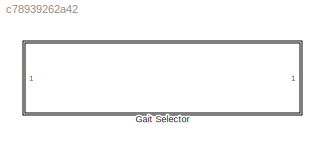
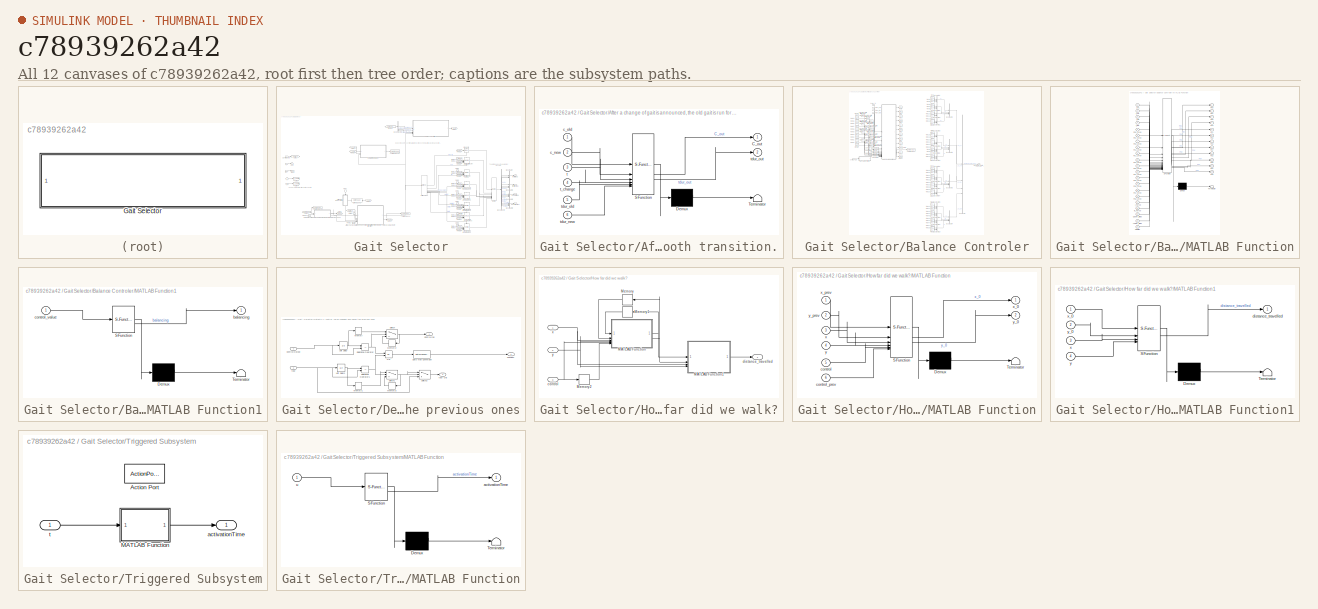
[diagram: thumbnail index - all 12 canvases of the model, root first then tree order]
MODEL slx_c78939262a42
KIND library
CONFIG AbsTol = auto
CONFIG EnableMultiTasking = off
CONFIG FixedStep = auto
CONFIG MaxStep = auto
CONFIG MinStep = auto
CONFIG RelTol = 1e-3
CONFIG SampleTimeConstraint = Unconstrained
CONFIG SolverName = VariableStepAuto
CONFIG StartTime = 0.0
CONFIG StopTime = 10.0
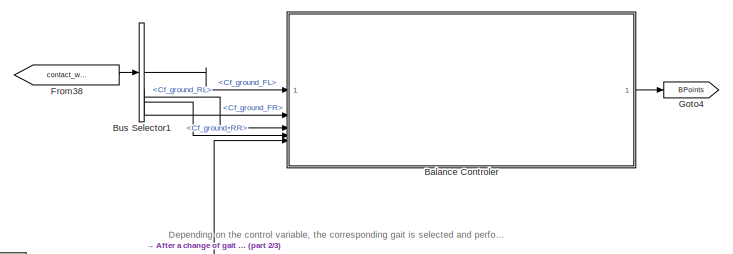
[diagram: Gait Selector - part 1/3, top center region]
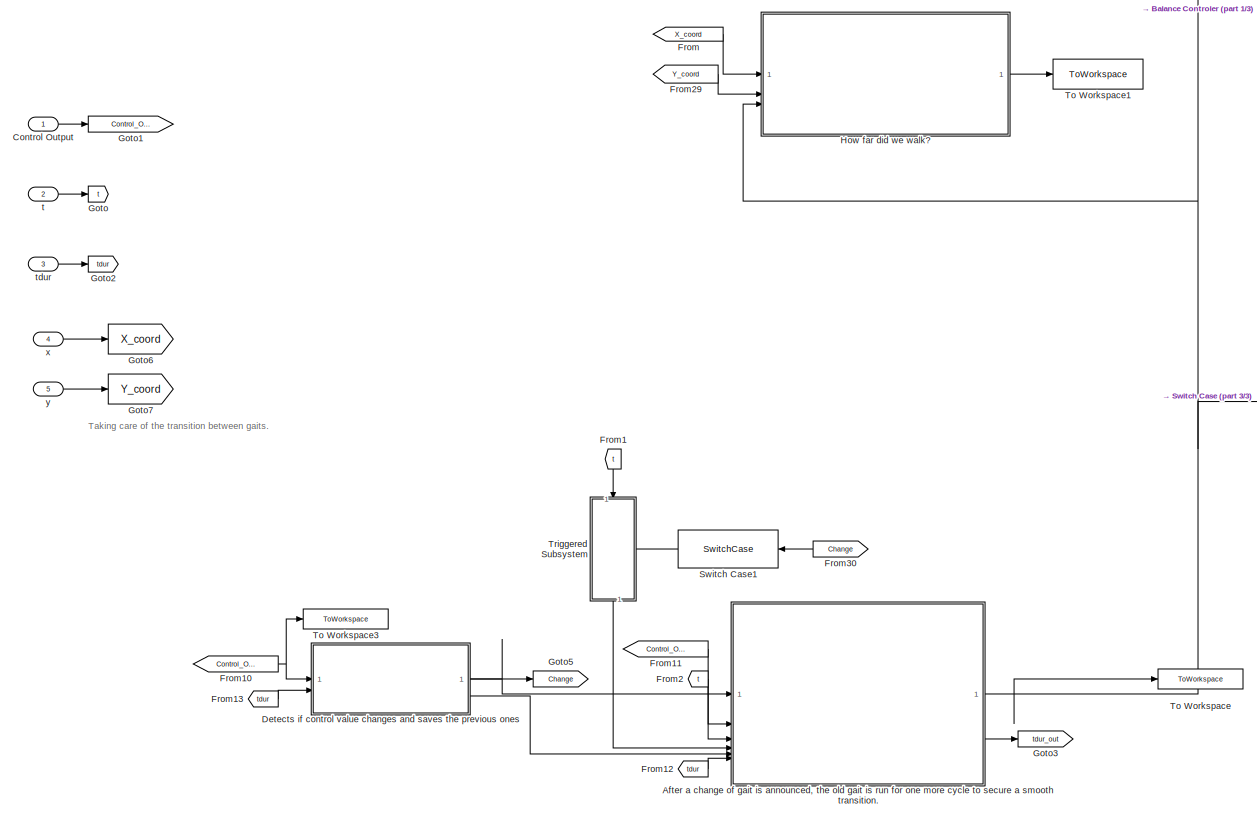
[diagram: Gait Selector - part 2/3, middle left region]
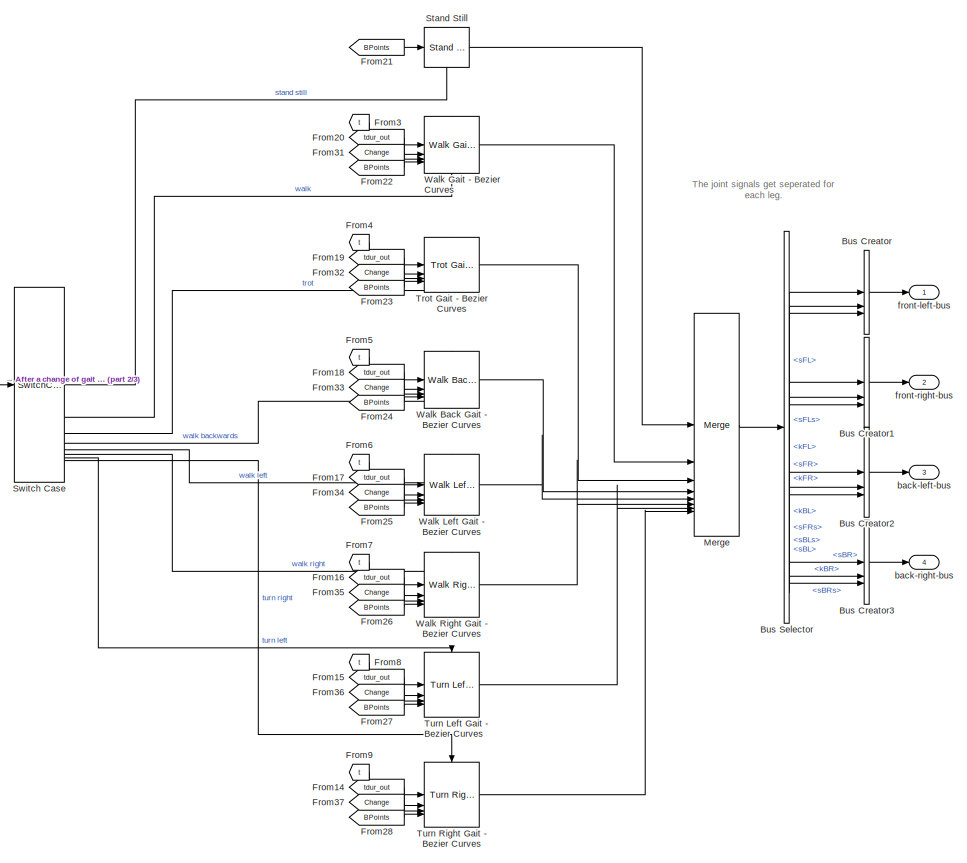
[diagram: Gait Selector - part 3/3, right side, full height]
BLOCK [SubSystem] Gait Selector
BLOCK [SubSystem] Gait Selector/After a change of gait is announced, the old gait is run for one more cycle to secure a smooth transition.
  ErrorFcn = Stateflow.Translate.translate
  PermitHierarchicalResolution = ExplicitOnly
  SFBlockType = MATLAB Function
  TreatAsAtomicUnit = on
BLOCK [Demux] Gait Selector/After a change of gait is announced, the old gait is run for one more cycle to secure a smooth transition./ Demux 
  Outputs = 1
BLOCK [S-Function] Gait Selector/After a change of gait is announced, the old gait is run for one more cycle to secure a smooth transition./ SFunction 
  EnableBusSupport = off
  FunctionName = sf_sfun
  PortCounts = [6 3]
  SFcnIsStateOwnerBlock = off
  SFunctionDeploymentMode = off
  Tag = Stateflow S-Function 105
BLOCK [Terminator] Gait Selector/After a change of gait is announced, the old gait is run for one more cycle to secure a smooth transition./ Terminator 
BLOCK [Outport] Gait Selector/After a change of gait is announced, the old gait is run for one more cycle to secure a smooth transition./C_out
BLOCK [Inport] Gait Selector/After a change of gait is announced, the old gait is run for one more cycle to secure a smooth transition./c_new
  Port = 2
BLOCK [Inport] Gait Selector/After a change of gait is announced, the old gait is run for one more cycle to secure a smooth transition./c_old
BLOCK [Inport] Gait Selector/After a change of gait is announced, the old gait is run for one more cycle to secure a smooth transition./t
  Port = 3
BLOCK [Inport] Gait Selector/After a change of gait is announced, the old gait is run for one more cycle to secure a smooth transition./t_change
  Port = 4
BLOCK [Inport] Gait Selector/After a change of gait is announced, the old gait is run for one more cycle to secure a smooth transition./tdur_new
  Port = 6
BLOCK [Inport] Gait Selector/After a change of gait is announced, the old gait is run for one more cycle to secure a smooth transition./tdur_old
  Port = 5
BLOCK [Outport] Gait Selector/After a change of gait is announced, the old gait is run for one more cycle to secure a smooth transition./tdur_out
  Port = 2
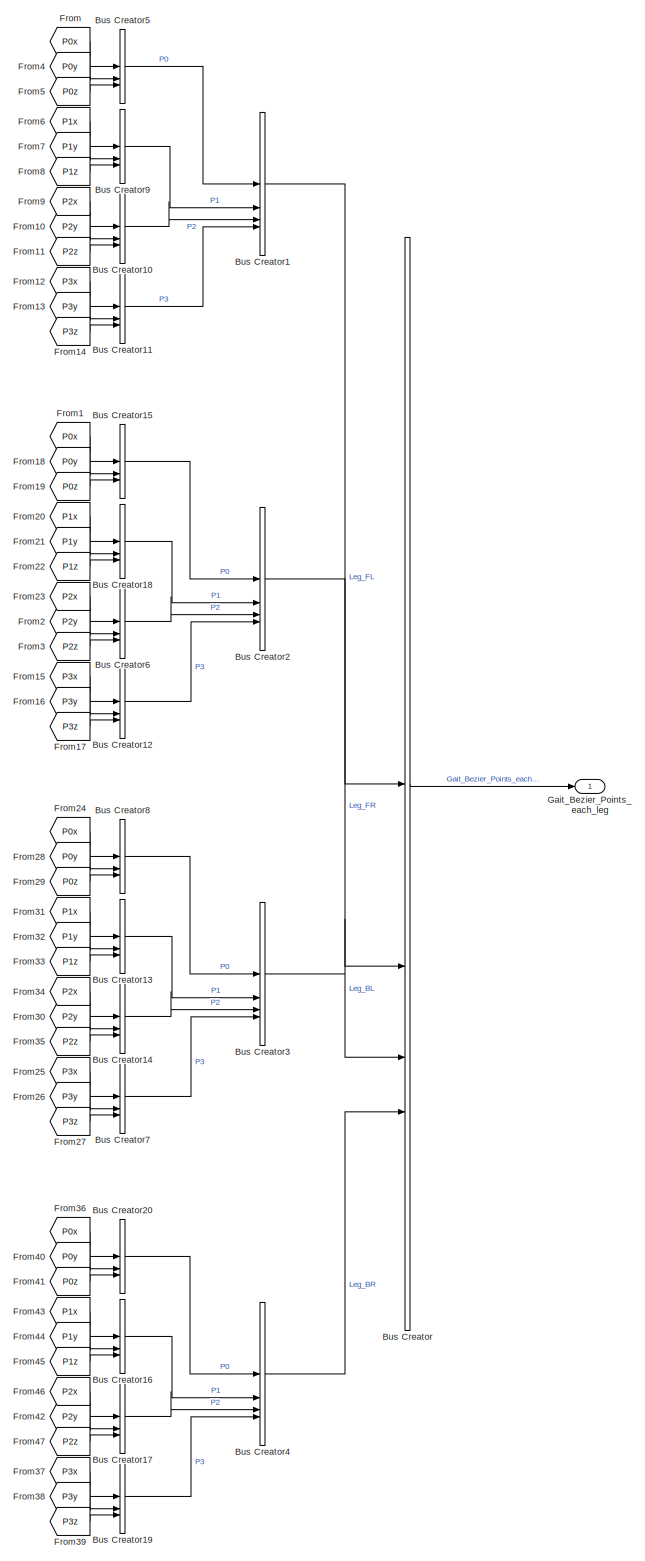
[diagram: Gait Selector/Balance Controler - part 1/2, right side, full height]
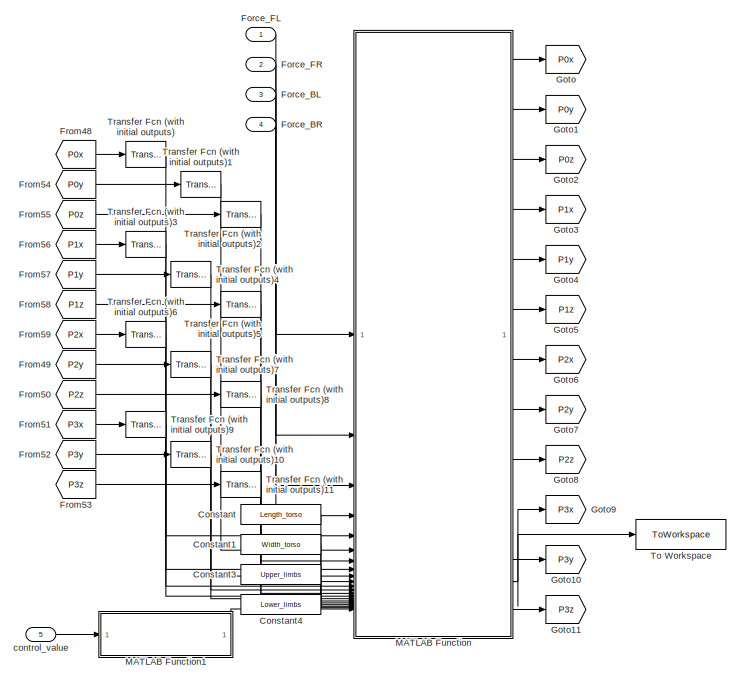
[diagram: Gait Selector/Balance Controler - part 2/2, top left region]
BLOCK [SubSystem] Gait Selector/Balance Controler
BLOCK [BusCreator] Gait Selector/Balance Controler/Bus Creator
  DisplayOption = bar
  InheritFromInputs = on
  Inputs = 4
BLOCK [BusCreator] Gait Selector/Balance Controler/Bus Creator1
  DisplayOption = bar
  InheritFromInputs = on
  Inputs = 4
BLOCK [BusCreator] Gait Selector/Balance Controler/Bus Creator10
  DisplayOption = bar
  InheritFromInputs = on
  Inputs = 3
BLOCK [BusCreator] Gait Selector/Balance Controler/Bus Creator11
  DisplayOption = bar
  InheritFromInputs = on
  Inputs = 3
BLOCK [BusCreator] Gait Selector/Balance Controler/Bus Creator12
  DisplayOption = bar
  InheritFromInputs = on
  Inputs = 3
BLOCK [BusCreator] Gait Selector/Balance Controler/Bus Creator13
  DisplayOption = bar
  InheritFromInputs = on
  Inputs = 3
BLOCK [BusCreator] Gait Selector/Balance Controler/Bus Creator14
  DisplayOption = bar
  InheritFromInputs = on
  Inputs = 3
BLOCK [BusCreator] Gait Selector/Balance Controler/Bus Creator15
  DisplayOption = bar
  InheritFromInputs = on
  Inputs = 3
BLOCK [BusCreator] Gait Selector/Balance Controler/Bus Creator16
  DisplayOption = bar
  InheritFromInputs = on
  Inputs = 3
BLOCK [BusCreator] Gait Selector/Balance Controler/Bus Creator17
  DisplayOption = bar
  InheritFromInputs = on
  Inputs = 3
BLOCK [BusCreator] Gait Selector/Balance Controler/Bus Creator18
  DisplayOption = bar
  InheritFromInputs = on
  Inputs = 3
BLOCK [BusCreator] Gait Selector/Balance Controler/Bus Creator19
  DisplayOption = bar
  InheritFromInputs = on
  Inputs = 3
BLOCK [BusCreator] Gait Selector/Balance Controler/Bus Creator2
  DisplayOption = bar
  InheritFromInputs = on
  Inputs = 4
BLOCK [BusCreator] Gait Selector/Balance Controler/Bus Creator20
  DisplayOption = bar
  InheritFromInputs = on
  Inputs = 3
BLOCK [BusCreator] Gait Selector/Balance Controler/Bus Creator3
  DisplayOption = bar
  InheritFromInputs = on
  Inputs = 4
BLOCK [BusCreator] Gait Selector/Balance Controler/Bus Creator4
  DisplayOption = bar
  InheritFromInputs = on
  Inputs = 4
BLOCK [BusCreator] Gait Selector/Balance Controler/Bus Creator5
  DisplayOption = bar
  InheritFromInputs = on
  Inputs = 3
BLOCK [BusCreator] Gait Selector/Balance Controler/Bus Creator6
  DisplayOption = bar
  InheritFromInputs = on
  Inputs = 3
BLOCK [BusCreator] Gait Selector/Balance Controler/Bus Creator7
  DisplayOption = bar
  InheritFromInputs = on
  Inputs = 3
BLOCK [BusCreator] Gait Selector/Balance Controler/Bus Creator8
  DisplayOption = bar
  InheritFromInputs = on
  Inputs = 3
BLOCK [BusCreator] Gait Selector/Balance Controler/Bus Creator9
  DisplayOption = bar
  InheritFromInputs = on
  Inputs = 3
BLOCK [Constant] Gait Selector/Balance Controler/Constant
  Value = Length_torso
BLOCK [Constant] Gait Selector/Balance Controler/Constant1
  Value = Width_torso
BLOCK [Constant] Gait Selector/Balance Controler/Constant3
  Value = Upper_limbs
BLOCK [Constant] Gait Selector/Balance Controler/Constant4
  Value = Lower_limbs
BLOCK [Inport] Gait Selector/Balance Controler/Force_BL
  Port = 3
BLOCK [Inport] Gait Selector/Balance Controler/Force_BR
  Port = 4
BLOCK [Inport] Gait Selector/Balance Controler/Force_FL
BLOCK [Inport] Gait Selector/Balance Controler/Force_FR
  Port = 2
BLOCK [From] Gait Selector/Balance Controler/From
  GotoTag = P0x
BLOCK [From] Gait Selector/Balance Controler/From1
  GotoTag = P0x
BLOCK [From] Gait Selector/Balance Controler/From10
  GotoTag = P2y
BLOCK [From] Gait Selector/Balance Controler/From11
  GotoTag = P2z
BLOCK [From] Gait Selector/Balance Controler/From12
  GotoTag = P3x
BLOCK [From] Gait Selector/Balance Controler/From13
  GotoTag = P3y
BLOCK [From] Gait Selector/Balance Controler/From14
  GotoTag = P3z
BLOCK [From] Gait Selector/Balance Controler/From15
  GotoTag = P3x
BLOCK [From] Gait Selector/Balance Controler/From16
  GotoTag = P3y
BLOCK [From] Gait Selector/Balance Controler/From17
  GotoTag = P3z
BLOCK [From] Gait Selector/Balance Controler/From18
  GotoTag = P0y
BLOCK [From] Gait Selector/Balance Controler/From19
  GotoTag = P0z
BLOCK [From] Gait Selector/Balance Controler/From2
  GotoTag = P2y
BLOCK [From] Gait Selector/Balance Controler/From20
  GotoTag = P1x
BLOCK [From] Gait Selector/Balance Controler/From21
  GotoTag = P1y
BLOCK [From] Gait Selector/Balance Controler/From22
  GotoTag = P1z
BLOCK [From] Gait Selector/Balance Controler/From23
  GotoTag = P2x
BLOCK [From] Gait Selector/Balance Controler/From24
  GotoTag = P0x
BLOCK [From] Gait Selector/Balance Controler/From25
  GotoTag = P3x
BLOCK [From] Gait Selector/Balance Controler/From26
  GotoTag = P3y
BLOCK [From] Gait Selector/Balance Controler/From27
  GotoTag = P3z
BLOCK [From] Gait Selector/Balance Controler/From28
  GotoTag = P0y
BLOCK [From] Gait Selector/Balance Controler/From29
  GotoTag = P0z
BLOCK [From] Gait Selector/Balance Controler/From3
  GotoTag = P2z
BLOCK [From] Gait Selector/Balance Controler/From30
  GotoTag = P2y
BLOCK [From] Gait Selector/Balance Controler/From31
  GotoTag = P1x
BLOCK [From] Gait Selector/Balance Controler/From32
  GotoTag = P1y
BLOCK [From] Gait Selector/Balance Controler/From33
  GotoTag = P1z
BLOCK [From] Gait Selector/Balance Controler/From34
  GotoTag = P2x
BLOCK [From] Gait Selector/Balance Controler/From35
  GotoTag = P2z
BLOCK [From] Gait Selector/Balance Controler/From36
  GotoTag = P0x
BLOCK [From] Gait Selector/Balance Controler/From37
  GotoTag = P3x
BLOCK [From] Gait Selector/Balance Controler/From38
  GotoTag = P3y
BLOCK [From] Gait Selector/Balance Controler/From39
  GotoTag = P3z
BLOCK [From] Gait Selector/Balance Controler/From4
  GotoTag = P0y
BLOCK [From] Gait Selector/Balance Controler/From40
  GotoTag = P0y
BLOCK [From] Gait Selector/Balance Controler/From41
  GotoTag = P0z
BLOCK [From] Gait Selector/Balance Controler/From42
  GotoTag = P2y
BLOCK [From] Gait Selector/Balance Controler/From43
  GotoTag = P1x
BLOCK [From] Gait Selector/Balance Controler/From44
  GotoTag = P1y
BLOCK [From] Gait Selector/Balance Controler/From45
  GotoTag = P1z
BLOCK [From] Gait Selector/Balance Controler/From46
  GotoTag = P2x
BLOCK [From] Gait Selector/Balance Controler/From47
  GotoTag = P2z
BLOCK [From] Gait Selector/Balance Controler/From48
  GotoTag = P0x
BLOCK [From] Gait Selector/Balance Controler/From49
  GotoTag = P2y
BLOCK [From] Gait Selector/Balance Controler/From5
  GotoTag = P0z
BLOCK [From] Gait Selector/Balance Controler/From50
  GotoTag = P2z
BLOCK [From] Gait Selector/Balance Controler/From51
  GotoTag = P3x
BLOCK [From] Gait Selector/Balance Controler/From52
  GotoTag = P3y
BLOCK [From] Gait Selector/Balance Controler/From53
  GotoTag = P3z
BLOCK [From] Gait Selector/Balance Controler/From54
  GotoTag = P0y
BLOCK [From] Gait Selector/Balance Controler/From55
  GotoTag = P0z
BLOCK [From] Gait Selector/Balance Controler/From56
  GotoTag = P1x
BLOCK [From] Gait Selector/Balance Controler/From57
  GotoTag = P1y
BLOCK [From] Gait Selector/Balance Controler/From58
  GotoTag = P1z
BLOCK [From] Gait Selector/Balance Controler/From59
  GotoTag = P2x
BLOCK [From] Gait Selector/Balance Controler/From6
  GotoTag = P1x
BLOCK [From] Gait Selector/Balance Controler/From7
  GotoTag = P1y
BLOCK [From] Gait Selector/Balance Controler/From8
  GotoTag = P1z
BLOCK [From] Gait Selector/Balance Controler/From9
  GotoTag = P2x
BLOCK [Outport] Gait Selector/Balance Controler/Gait_Bezier_Points_each_leg
BLOCK [Goto] Gait Selector/Balance Controler/Goto
  GotoTag = P0x
BLOCK [Goto] Gait Selector/Balance Controler/Goto1
  GotoTag = P0y
BLOCK [Goto] Gait Selector/Balance Controler/Goto10
  GotoTag = P3y
BLOCK [Goto] Gait Selector/Balance Controler/Goto11
  GotoTag = P3z
BLOCK [Goto] Gait Selector/Balance Controler/Goto2
  GotoTag = P0z
BLOCK [Goto] Gait Selector/Balance Controler/Goto3
  GotoTag = P1x
BLOCK [Goto] Gait Selector/Balance Controler/Goto4
  GotoTag = P1y
BLOCK [Goto] Gait Selector/Balance Controler/Goto5
  GotoTag = P1z
BLOCK [Goto] Gait Selector/Balance Controler/Goto6
  GotoTag = P2x
BLOCK [Goto] Gait Selector/Balance Controler/Goto7
  GotoTag = P2y
BLOCK [Goto] Gait Selector/Balance Controler/Goto8
  GotoTag = P2z
BLOCK [Goto] Gait Selector/Balance Controler/Goto9
  GotoTag = P3x
BLOCK [SubSystem] Gait Selector/Balance Controler/MATLAB Function
  ErrorFcn = Stateflow.Translate.translate
  PermitHierarchicalResolution = ExplicitOnly
  SFBlockType = MATLAB Function
  TreatAsAtomicUnit = on
BLOCK [Demux] Gait Selector/Balance Controler/MATLAB Function/ Demux 
  Outputs = 1
BLOCK [S-Function] Gait Selector/Balance Controler/MATLAB Function/ SFunction 
  EnableBusSupport = off
  FunctionName = sf_sfun
  PortCounts = [21 13]
  SFcnIsStateOwnerBlock = off
  SFunctionDeploymentMode = off
  Tag = Stateflow S-Function 2
BLOCK [Terminator] Gait Selector/Balance Controler/MATLAB Function/ Terminator 
BLOCK [Inport] Gait Selector/Balance Controler/MATLAB Function/Lower_limbs
  Port = 20
BLOCK [Outport] Gait Selector/Balance Controler/MATLAB Function/P0x
BLOCK [Inport] Gait Selector/Balance Controler/MATLAB Function/P0x_prev
  Port = 5
BLOCK [Outport] Gait Selector/Balance Controler/MATLAB Function/P0y
  Port = 2
BLOCK [Inport] Gait Selector/Balance Controler/MATLAB Function/P0y_prev
  Port = 6
BLOCK [Outport] Gait Selector/Balance Controler/MATLAB Function/P0z
  Port = 3
BLOCK [Inport] Gait Selector/Balance Controler/MATLAB Function/P0z_prev
  Port = 7
BLOCK [Outport] Gait Selector/Balance Controler/MATLAB Function/P1x
  Port = 4
BLOCK [Inport] Gait Selector/Balance Controler/MATLAB Function/P1x_prev
  Port = 8
BLOCK [Outport] Gait Selector/Balance Controler/MATLAB Function/P1y
  Port = 5
BLOCK [Inport] Gait Selector/Balance Controler/MATLAB Function/P1y_prev
  Port = 9
BLOCK [Outport] Gait Selector/Balance Controler/MATLAB Function/P1z
  Port = 6
BLOCK [Inport] Gait Selector/Balance Controler/MATLAB Function/P1z_prev
  Port = 10
BLOCK [Outport] Gait Selector/Balance Controler/MATLAB Function/P2x
  Port = 7
BLOCK [Inport] Gait Selector/Balance Controler/MATLAB Function/P2x_prev
  Port = 11
BLOCK [Outport] Gait Selector/Balance Controler/MATLAB Function/P2y
  Port = 8
BLOCK [Inport] Gait Selector/Balance Controler/MATLAB Function/P2y_prev
  Port = 12
BLOCK [Outport] Gait Selector/Balance Controler/MATLAB Function/P2z
  Port = 9
BLOCK [Inport] Gait Selector/Balance Controler/MATLAB Function/P2z_prev
  Port = 13
BLOCK [Outport] Gait Selector/Balance Controler/MATLAB Function/P3x
  Port = 10
BLOCK [Inport] Gait Selector/Balance Controler/MATLAB Function/P3x_prev
  Port = 14
BLOCK [Outport] Gait Selector/Balance Controler/MATLAB Function/P3y
  Port = 11
BLOCK [Inport] Gait Selector/Balance Controler/MATLAB Function/P3y_prev
  Port = 15
BLOCK [Outport] Gait Selector/Balance Controler/MATLAB Function/P3z
  Port = 12
BLOCK [Inport] Gait Selector/Balance Controler/MATLAB Function/P3z_prev
  Port = 16
BLOCK [Inport] Gait Selector/Balance Controler/MATLAB Function/Upper_limbs
  Port = 19
BLOCK [Inport] Gait Selector/Balance Controler/MATLAB Function/f_BL
  Port = 3
BLOCK [Inport] Gait Selector/Balance Controler/MATLAB Function/f_BR
  Port = 4
BLOCK [Inport] Gait Selector/Balance Controler/MATLAB Function/f_FL
BLOCK [Inport] Gait Selector/Balance Controler/MATLAB Function/f_FR
  Port = 2
BLOCK [Inport] Gait Selector/Balance Controler/MATLAB Function/l_Torso
  Port = 17
BLOCK [Inport] Gait Selector/Balance Controler/MATLAB Function/stabilize
  Port = 21
BLOCK [Inport] Gait Selector/Balance Controler/MATLAB Function/w_Torso
  Port = 18
BLOCK [SubSystem] Gait Selector/Balance Controler/MATLAB Function1
  ErrorFcn = Stateflow.Translate.translate
  PermitHierarchicalResolution = ExplicitOnly
  SFBlockType = MATLAB Function
  TreatAsAtomicUnit = on
BLOCK [Demux] Gait Selector/Balance Controler/MATLAB Function1/ Demux 
  Outputs = 1
BLOCK [S-Function] Gait Selector/Balance Controler/MATLAB Function1/ SFunction 
  EnableBusSupport = off
  FunctionName = sf_sfun
  PortCounts = [1 2]
  SFcnIsStateOwnerBlock = off
  SFunctionDeploymentMode = off
  Tag = Stateflow S-Function 1
BLOCK [Terminator] Gait Selector/Balance Controler/MATLAB Function1/ Terminator 
BLOCK [Outport] Gait Selector/Balance Controler/MATLAB Function1/balancing
BLOCK [Inport] Gait Selector/Balance Controler/MATLAB Function1/control_value
BLOCK [ToWorkspace] Gait Selector/Balance Controler/To Workspace
  Commented = on
  FixptAsFi = on
  MaxDataPoints = inf
  SampleTime = -1
  SaveFormat = Structure With Time
  VariableName = temp
BLOCK [Reference] Gait Selector/Balance Controler/Transfer Fcn (with initial outputs)  REF=simulink_extras/Additional
Linear/Transfer Fcn
(with initial outputs)
  SourceBlock = simulink_extras/Additional\nLinear/Transfer Fcn\n(with initial outputs)
  SourceType = Transfer Function with Initial Outputs
BLOCK [Reference] Gait Selector/Balance Controler/Transfer Fcn (with initial outputs)1  REF=simulink_extras/Additional
Linear/Transfer Fcn
(with initial outputs)
  SourceBlock = simulink_extras/Additional\nLinear/Transfer Fcn\n(with initial outputs)
  SourceType = Transfer Function with Initial Outputs
BLOCK [Reference] Gait Selector/Balance Controler/Transfer Fcn (with initial outputs)10  REF=simulink_extras/Additional
Linear/Transfer Fcn
(with initial outputs)
  SourceBlock = simulink_extras/Additional\nLinear/Transfer Fcn\n(with initial outputs)
  SourceType = Transfer Function with Initial Outputs
BLOCK [Reference] Gait Selector/Balance Controler/Transfer Fcn (with initial outputs)11  REF=simulink_extras/Additional
Linear/Transfer Fcn
(with initial outputs)
  SourceBlock = simulink_extras/Additional\nLinear/Transfer Fcn\n(with initial outputs)
  SourceType = Transfer Function with Initial Outputs
BLOCK [Reference] Gait Selector/Balance Controler/Transfer Fcn (with initial outputs)2  REF=simulink_extras/Additional
Linear/Transfer Fcn
(with initial outputs)
  SourceBlock = simulink_extras/Additional\nLinear/Transfer Fcn\n(with initial outputs)
  SourceType = Transfer Function with Initial Outputs
BLOCK [Reference] Gait Selector/Balance Controler/Transfer Fcn (with initial outputs)3  REF=simulink_extras/Additional
Linear/Transfer Fcn
(with initial outputs)
  SourceBlock = simulink_extras/Additional\nLinear/Transfer Fcn\n(with initial outputs)
  SourceType = Transfer Function with Initial Outputs
BLOCK [Reference] Gait Selector/Balance Controler/Transfer Fcn (with initial outputs)4  REF=simulink_extras/Additional
Linear/Transfer Fcn
(with initial outputs)
  SourceBlock = simulink_extras/Additional\nLinear/Transfer Fcn\n(with initial outputs)
  SourceType = Transfer Function with Initial Outputs
BLOCK [Reference] Gait Selector/Balance Controler/Transfer Fcn (with initial outputs)5  REF=simulink_extras/Additional
Linear/Transfer Fcn
(with initial outputs)
  SourceBlock = simulink_extras/Additional\nLinear/Transfer Fcn\n(with initial outputs)
  SourceType = Transfer Function with Initial Outputs
BLOCK [Reference] Gait Selector/Balance Controler/Transfer Fcn (with initial outputs)6  REF=simulink_extras/Additional
Linear/Transfer Fcn
(with initial outputs)
  SourceBlock = simulink_extras/Additional\nLinear/Transfer Fcn\n(with initial outputs)
  SourceType = Transfer Function with Initial Outputs
BLOCK [Reference] Gait Selector/Balance Controler/Transfer Fcn (with initial outputs)7  REF=simulink_extras/Additional
Linear/Transfer Fcn
(with initial outputs)
  SourceBlock = simulink_extras/Additional\nLinear/Transfer Fcn\n(with initial outputs)
  SourceType = Transfer Function with Initial Outputs
BLOCK [Reference] Gait Selector/Balance Controler/Transfer Fcn (with initial outputs)8  REF=simulink_extras/Additional
Linear/Transfer Fcn
(with initial outputs)
  SourceBlock = simulink_extras/Additional\nLinear/Transfer Fcn\n(with initial outputs)
  SourceType = Transfer Function with Initial Outputs
BLOCK [Reference] Gait Selector/Balance Controler/Transfer Fcn (with initial outputs)9  REF=simulink_extras/Additional
Linear/Transfer Fcn
(with initial outputs)
  SourceBlock = simulink_extras/Additional\nLinear/Transfer Fcn\n(with initial outputs)
  SourceType = Transfer Function with Initial Outputs
BLOCK [Inport] Gait Selector/Balance Controler/control_value
  Port = 5
BLOCK [BusCreator] Gait Selector/Bus Creator
  DisplayOption = bar
  InheritFromInputs = on
  Inputs = 3
BLOCK [BusCreator] Gait Selector/Bus Creator1
  DisplayOption = bar
  InheritFromInputs = on
  Inputs = 3
BLOCK [BusCreator] Gait Selector/Bus Creator2
  DisplayOption = bar
  InheritFromInputs = on
  Inputs = 3
BLOCK [BusCreator] Gait Selector/Bus Creator3
  DisplayOption = bar
  InheritFromInputs = on
  Inputs = 3
BLOCK [BusSelector] Gait Selector/Bus Selector
  OutputSignals = sFL,kFL,sFLs,sFR,kFR,sFRs,sBL,kBL,sBLs,sBR,kBR,sBRs
BLOCK [BusSelector] Gait Selector/Bus Selector1
  OutputSignals = Cf_ground_FL,Cf_ground_FR,Cf_ground_RL,Cf_ground_RR
BLOCK [Inport] Gait Selector/Control Output
BLOCK [SubSystem] Gait Selector/Detects if control value changes and saves the previous ones
BLOCK [Outport] Gait Selector/Detects if control value changes and saves the previous ones/Change?
  Port = 2
BLOCK [Outport] Gait Selector/Detects if control value changes and saves the previous ones/Control Old
BLOCK [Inport] Gait Selector/Detects if control value changes and saves the previous ones/Control Output
BLOCK [DataTypeConversion] Gait Selector/Detects if control value changes and saves the previous ones/Data Type Conversion
  OutDataTypeStr = double
  RndMeth = Floor
  SaturateOnIntegerOverflow = off
BLOCK [Memory] Gait Selector/Detects if control value changes and saves the previous ones/Memory
BLOCK [Memory] Gait Selector/Detects if control value changes and saves the previous ones/Memory1
BLOCK [Memory] Gait Selector/Detects if control value changes and saves the previous ones/Memory2
  NameLocation = top
BLOCK [Memory] Gait Selector/Detects if control value changes and saves the previous ones/Memory3
  NameLocation = top
BLOCK [Logic] Gait Selector/Detects if control value changes and saves the previous ones/OR
  AllPortsSameDT = off
  IconShape = distinctive
  Operator = OR
  OutDataTypeStr = boolean
BLOCK [RelationalOperator] Gait Selector/Detects if control value changes and saves the previous ones/Relational Operator
  InputSameDT = off
  Operator = ~=
  OutDataTypeStr = boolean
  RndMeth = Simplest
BLOCK [RelationalOperator] Gait Selector/Detects if control value changes and saves the previous ones/Relational Operator1
  InputSameDT = off
  Operator = ~=
  OutDataTypeStr = boolean
  RndMeth = Simplest
BLOCK [Switch] Gait Selector/Detects if control value changes and saves the previous ones/Switch
  Criteria = u2 > Threshold
  InputSameDT = off
  SaturateOnIntegerOverflow = off
BLOCK [Switch] Gait Selector/Detects if control value changes and saves the previous ones/Switch1
  Criteria = u2 > Threshold
  InputSameDT = off
  SaturateOnIntegerOverflow = off
BLOCK [Switch] Gait Selector/Detects if control value changes and saves the previous ones/Switch2
  Criteria = u2 ~= 0
  InputSameDT = off
  SaturateOnIntegerOverflow = off
BLOCK [UnitDelay] Gait Selector/Detects if control value changes and saves the previous ones/Unit Delay
  HasFrameUpgradeWarning = on
  SampleTime = -1
BLOCK [UnitDelay] Gait Selector/Detects if control value changes and saves the previous ones/Unit Delay1
  HasFrameUpgradeWarning = on
  SampleTime = -1
BLOCK [Inport] Gait Selector/Detects if control value changes and saves the previous ones/tdur
  Port = 2
BLOCK [Outport] Gait Selector/Detects if control value changes and saves the previous ones/tdur Old
  Port = 3
BLOCK [From] Gait Selector/From
  GotoTag = X_coord
BLOCK [From] Gait Selector/From1
  GotoTag = t
  NameLocation = left
BLOCK [From] Gait Selector/From10
  GotoTag = Control_Output
BLOCK [From] Gait Selector/From11
  GotoTag = Control_Output
BLOCK [From] Gait Selector/From12
  GotoTag = tdur
BLOCK [From] Gait Selector/From13
  GotoTag = tdur
BLOCK [From] Gait Selector/From14
  GotoTag = tdur_out
BLOCK [From] Gait Selector/From15
  GotoTag = tdur_out
BLOCK [From] Gait Selector/From16
  GotoTag = tdur_out
BLOCK [From] Gait Selector/From17
  GotoTag = tdur_out
BLOCK [From] Gait Selector/From18
  GotoTag = tdur_out
BLOCK [From] Gait Selector/From19
  GotoTag = tdur_out
BLOCK [From] Gait Selector/From2
  GotoTag = t
BLOCK [From] Gait Selector/From20
  GotoTag = tdur_out
BLOCK [From] Gait Selector/From21
  GotoTag = BPoints
BLOCK [From] Gait Selector/From22
  GotoTag = BPoints
BLOCK [From] Gait Selector/From23
  GotoTag = BPoints
BLOCK [From] Gait Selector/From24
  GotoTag = BPoints
BLOCK [From] Gait Selector/From25
  GotoTag = BPoints
BLOCK [From] Gait Selector/From26
  GotoTag = BPoints
BLOCK [From] Gait Selector/From27
  GotoTag = BPoints
BLOCK [From] Gait Selector/From28
  GotoTag = BPoints
BLOCK [From] Gait Selector/From29
  GotoTag = Y_coord
BLOCK [From] Gait Selector/From3
  GotoTag = t
BLOCK [From] Gait Selector/From30
  GotoTag = Change
BLOCK [From] Gait Selector/From31
  GotoTag = Change
BLOCK [From] Gait Selector/From32
  GotoTag = Change
BLOCK [From] Gait Selector/From33
  GotoTag = Change
BLOCK [From] Gait Selector/From34
  GotoTag = Change
BLOCK [From] Gait Selector/From35
  GotoTag = Change
BLOCK [From] Gait Selector/From36
  GotoTag = Change
BLOCK [From] Gait Selector/From37
  GotoTag = Change
BLOCK [From] Gait Selector/From38
  GotoTag = contact_with_grid
  TagVisibility = global
BLOCK [From] Gait Selector/From4
  GotoTag = t
BLOCK [From] Gait Selector/From5
  GotoTag = t
BLOCK [From] Gait Selector/From6
  GotoTag = t
BLOCK [From] Gait Selector/From7
  GotoTag = t
BLOCK [From] Gait Selector/From8
  GotoTag = t
BLOCK [From] Gait Selector/From9
  GotoTag = t
BLOCK [Goto] Gait Selector/Goto
  GotoTag = t
BLOCK [Goto] Gait Selector/Goto1
  GotoTag = Control_Output
BLOCK [Goto] Gait Selector/Goto2
  GotoTag = tdur
BLOCK [Goto] Gait Selector/Goto3
  GotoTag = tdur_out
BLOCK [Goto] Gait Selector/Goto4
  GotoTag = BPoints
BLOCK [Goto] Gait Selector/Goto5
  GotoTag = Change
BLOCK [Goto] Gait Selector/Goto6
  GotoTag = X_coord
BLOCK [Goto] Gait Selector/Goto7
  GotoTag = Y_coord
BLOCK [SubSystem] Gait Selector/How far did we walk?
BLOCK [SubSystem] Gait Selector/How far did we walk?/MATLAB Function
  ErrorFcn = Stateflow.Translate.translate
  PermitHierarchicalResolution = ExplicitOnly
  SFBlockType = MATLAB Function
  TreatAsAtomicUnit = on
BLOCK [Demux] Gait Selector/How far did we walk?/MATLAB Function/ Demux 
  Outputs = 1
BLOCK [S-Function] Gait Selector/How far did we walk?/MATLAB Function/ SFunction 
  EnableBusSupport = off
  FunctionName = sf_sfun
  PortCounts = [6 3]
  SFcnIsStateOwnerBlock = off
  SFunctionDeploymentMode = off
  Tag = Stateflow S-Function 3
BLOCK [Terminator] Gait Selector/How far did we walk?/MATLAB Function/ Terminator 
BLOCK [Inport] Gait Selector/How far did we walk?/MATLAB Function/control
  Port = 5
BLOCK [Inport] Gait Selector/How far did we walk?/MATLAB Function/control_prev
  Port = 6
BLOCK [Inport] Gait Selector/How far did we walk?/MATLAB Function/x
  Port = 3
BLOCK [Outport] Gait Selector/How far did we walk?/MATLAB Function/x_0
BLOCK [Inport] Gait Selector/How far did we walk?/MATLAB Function/x_prev
BLOCK [Inport] Gait Selector/How far did we walk?/MATLAB Function/y
  Port = 4
BLOCK [Outport] Gait Selector/How far did we walk?/MATLAB Function/y_0
  Port = 2
BLOCK [Inport] Gait Selector/How far did we walk?/MATLAB Function/y_prev
  Port = 2
BLOCK [SubSystem] Gait Selector/How far did we walk?/MATLAB Function1
  ErrorFcn = Stateflow.Translate.translate
  PermitHierarchicalResolution = ExplicitOnly
  SFBlockType = MATLAB Function
  TreatAsAtomicUnit = on
BLOCK [Demux] Gait Selector/How far did we walk?/MATLAB Function1/ Demux 
  Outputs = 1
BLOCK [S-Function] Gait Selector/How far did we walk?/MATLAB Function1/ SFunction 
  EnableBusSupport = off
  FunctionName = sf_sfun
  PortCounts = [4 2]
  SFcnIsStateOwnerBlock = off
  SFunctionDeploymentMode = off
  Tag = Stateflow S-Function 4
BLOCK [Terminator] Gait Selector/How far did we walk?/MATLAB Function1/ Terminator 
BLOCK [Outport] Gait Selector/How far did we walk?/MATLAB Function1/distance_travelled
BLOCK [Inport] Gait Selector/How far did we walk?/MATLAB Function1/x
  Port = 3
BLOCK [Inport] Gait Selector/How far did we walk?/MATLAB Function1/x_0
BLOCK [Inport] Gait Selector/How far did we walk?/MATLAB Function1/y
  Port = 4
BLOCK [Inport] Gait Selector/How far did we walk?/MATLAB Function1/y_0
  Port = 2
BLOCK [Memory] Gait Selector/How far did we walk?/Memory
  NameLocation = top
BLOCK [Memory] Gait Selector/How far did we walk?/Memory1
  NameLocation = top
BLOCK [Memory] Gait Selector/How far did we walk?/Memory2
BLOCK [Inport] Gait Selector/How far did we walk?/control
  Port = 3
BLOCK [Outport] Gait Selector/How far did we walk?/distance_travelled
BLOCK [Inport] Gait Selector/How far did we walk?/x
BLOCK [Inport] Gait Selector/How far did we walk?/y
  Port = 2
BLOCK [Merge] Gait Selector/Merge
  Inputs = 8
BLOCK [Reference] Gait Selector/Stand Still  REF=stand_still_Gait/Stand Still
  SourceBlock = stand_still_Gait/Stand Still
  SourceType = SubSystem
BLOCK [SwitchCase] Gait Selector/Switch Case
  CaseConditions = {0,1,2,3,4,5,6,7}
  ShowDefaultCase = off
BLOCK [SwitchCase] Gait Selector/Switch Case1
  NameLocation = top
  ShowDefaultCase = off
BLOCK [ToWorkspace] Gait Selector/To Workspace
  FixptAsFi = on
  MaxDataPoints = inf
  SampleTime = -1
  SaveFormat = Structure With Time
  VariableName = control_variable
BLOCK [ToWorkspace] Gait Selector/To Workspace1
  FixptAsFi = on
  MaxDataPoints = inf
  SampleTime = -1
  SaveFormat = Structure With Time
  VariableName = temp
BLOCK [ToWorkspace] Gait Selector/To Workspace3
  FixptAsFi = on
  MaxDataPoints = inf
  SampleTime = -1
  SaveFormat = Structure With Time
  VariableName = signal_from_control
BLOCK [SubSystem] Gait Selector/Triggered Subsystem
  NameLocation = left
  TreatAsAtomicUnit = on
BLOCK [ActionPort] Gait Selector/Triggered Subsystem/Action Port
  InitializeStates = reset
BLOCK [SubSystem] Gait Selector/Triggered Subsystem/MATLAB Function
  ErrorFcn = Stateflow.Translate.translate
  PermitHierarchicalResolution = ExplicitOnly
  SFBlockType = MATLAB Function
  TreatAsAtomicUnit = on
BLOCK [Demux] Gait Selector/Triggered Subsystem/MATLAB Function/ Demux 
  Outputs = 1
BLOCK [S-Function] Gait Selector/Triggered Subsystem/MATLAB Function/ SFunction 
  EnableBusSupport = off
  FunctionName = sf_sfun
  PortCounts = [1 2]
  SFcnIsStateOwnerBlock = off
  SFunctionDeploymentMode = off
  Tag = Stateflow S-Function 101
BLOCK [Terminator] Gait Selector/Triggered Subsystem/MATLAB Function/ Terminator 
BLOCK [Outport] Gait Selector/Triggered Subsystem/MATLAB Function/activationTime
BLOCK [Inport] Gait Selector/Triggered Subsystem/MATLAB Function/u
BLOCK [Outport] Gait Selector/Triggered Subsystem/activationTime
BLOCK [Inport] Gait Selector/Triggered Subsystem/t
BLOCK [Reference] Gait Selector/Trot Gait - Bezier Curves  REF=trot_Gait/Trot Gait - Bezier Curves
  SourceBlock = trot_Gait/Trot Gait - Bezier Curves
  SourceType = SubSystem
BLOCK [Reference] Gait Selector/Turn Left Gait - Bezier Curves  REF=turn_left_Gait/Turn Left Gait - Bezier Curves
  SourceBlock = turn_left_Gait/Turn Left Gait - Bezier Curves
  SourceType = SubSystem
BLOCK [Reference] Gait Selector/Turn Right Gait - Bezier Curves  REF=turn_right_Gait/Turn Right Gait - Bezier Curves
  SourceBlock = turn_right_Gait/Turn Right Gait - Bezier Curves
  SourceType = SubSystem
BLOCK [Reference] Gait Selector/Walk Back Gait - Bezier Curves  REF=walk_back_Gait/Walk Back Gait - Bezier Curves
  SourceBlock = walk_back_Gait/Walk Back Gait - Bezier Curves
  SourceType = SubSystem
BLOCK [Reference] Gait Selector/Walk Gait - Bezier Curves  REF=walk_Gait/Walk Gait - Bezier Curves
  SourceBlock = walk_Gait/Walk Gait - Bezier Curves
  SourceType = SubSystem
BLOCK [Reference] Gait Selector/Walk Left Gait - Bezier Curves  REF=walk_left_Gait/Walk Left Gait - Bezier Curves
  SourceBlock = walk_left_Gait/Walk Left Gait - Bezier Curves
  SourceType = SubSystem
BLOCK [Reference] Gait Selector/Walk Right Gait - Bezier Curves  REF=walk_right_Gait/Walk Right Gait - Bezier Curves
  SourceBlock = walk_right_Gait/Walk Right Gait - Bezier Curves
  SourceType = SubSystem
BLOCK [Outport] Gait Selector/back-left-bus
  Port = 3
BLOCK [Outport] Gait Selector/back-right-bus
  Port = 4
BLOCK [Outport] Gait Selector/front-left-bus
BLOCK [Outport] Gait Selector/front-right-bus
  Port = 2
BLOCK [Inport] Gait Selector/t
  Port = 2
BLOCK [Inport] Gait Selector/tdur
  Port = 3
BLOCK [Inport] Gait Selector/x
  Port = 4
BLOCK [Inport] Gait Selector/y
  Port = 5
ANNOTATION Gait Selector: Depending on the control variable, the corresponding gait is selected and performed.
ANNOTATION Gait Selector: Taking care of the transition between gaits.
ANNOTATION Gait Selector: The joint signals get seperated for each leg.
NET Gait Selector/After a change of gait is announced, the old gait is run for one more cycle to secure a smooth transition.:1 -> Gait Selector/Balance Controler:5, Gait Selector/How far did we walk?:3, Gait Selector/Switch Case:1, Gait Selector/To Workspace:1
LINE Gait Selector/After a change of gait is announced, the old gait is run for one more cycle to secure a smooth transition.:2 -> Gait Selector/Goto3:1
LINE Gait Selector/Balance Controler/Bus Creator10:1 -> Gait Selector/Balance Controler/Bus Creator1:3
LINE Gait Selector/Balance Controler/Bus Creator11:1 -> Gait Selector/Balance Controler/Bus Creator1:4
LINE Gait Selector/Balance Controler/Bus Creator12:1 -> Gait Selector/Balance Controler/Bus Creator2:4
LINE Gait Selector/Balance Controler/Bus Creator13:1 -> Gait Selector/Balance Controler/Bus Creator3:2
LINE Gait Selector/Balance Controler/Bus Creator14:1 -> Gait Selector/Balance Controler/Bus Creator3:3
LINE Gait Selector/Balance Controler/Bus Creator15:1 -> Gait Selector/Balance Controler/Bus Creator2:1
LINE Gait Selector/Balance Controler/Bus Creator16:1 -> Gait Selector/Balance Controler/Bus Creator4:2
LINE Gait Selector/Balance Controler/Bus Creator17:1 -> Gait Selector/Balance Controler/Bus Creator4:3
LINE Gait Selector/Balance Controler/Bus Creator18:1 -> Gait Selector/Balance Controler/Bus Creator2:2
LINE Gait Selector/Balance Controler/Bus Creator19:1 -> Gait Selector/Balance Controler/Bus Creator4:4
LINE Gait Selector/Balance Controler/Bus Creator1:1 -> Gait Selector/Balance Controler/Bus Creator:1
LINE Gait Selector/Balance Controler/Bus Creator20:1 -> Gait Selector/Balance Controler/Bus Creator4:1
LINE Gait Selector/Balance Controler/Bus Creator2:1 -> Gait Selector/Balance Controler/Bus Creator:2
LINE Gait Selector/Balance Controler/Bus Creator3:1 -> Gait Selector/Balance Controler/Bus Creator:3
LINE Gait Selector/Balance Controler/Bus Creator4:1 -> Gait Selector/Balance Controler/Bus Creator:4
LINE Gait Selector/Balance Controler/Bus Creator5:1 -> Gait Selector/Balance Controler/Bus Creator1:1
LINE Gait Selector/Balance Controler/Bus Creator6:1 -> Gait Selector/Balance Controler/Bus Creator2:3
LINE Gait Selector/Balance Controler/Bus Creator7:1 -> Gait Selector/Balance Controler/Bus Creator3:4
LINE Gait Selector/Balance Controler/Bus Creator8:1 -> Gait Selector/Balance Controler/Bus Creator3:1
LINE Gait Selector/Balance Controler/Bus Creator9:1 -> Gait Selector/Balance Controler/Bus Creator1:2
LINE Gait Selector/Balance Controler/Bus Creator:1 -> Gait Selector/Balance Controler/Gait_Bezier_Points_each_leg:1
LINE Gait Selector/Balance Controler/Constant1:1 -> Gait Selector/Balance Controler/MATLAB Function:18
LINE Gait Selector/Balance Controler/Constant3:1 -> Gait Selector/Balance Controler/MATLAB Function:19
LINE Gait Selector/Balance Controler/Constant4:1 -> Gait Selector/Balance Controler/MATLAB Function:20
LINE Gait Selector/Balance Controler/Constant:1 -> Gait Selector/Balance Controler/MATLAB Function:17
LINE Gait Selector/Balance Controler/Force_BL:1 -> Gait Selector/Balance Controler/MATLAB Function:3
LINE Gait Selector/Balance Controler/Force_BR:1 -> Gait Selector/Balance Controler/MATLAB Function:4
LINE Gait Selector/Balance Controler/Force_FL:1 -> Gait Selector/Balance Controler/MATLAB Function:1
LINE Gait Selector/Balance Controler/Force_FR:1 -> Gait Selector/Balance Controler/MATLAB Function:2
LINE Gait Selector/Balance Controler/From10:1 -> Gait Selector/Balance Controler/Bus Creator10:2
LINE Gait Selector/Balance Controler/From11:1 -> Gait Selector/Balance Controler/Bus Creator10:3
LINE Gait Selector/Balance Controler/From12:1 -> Gait Selector/Balance Controler/Bus Creator11:1
LINE Gait Selector/Balance Controler/From13:1 -> Gait Selector/Balance Controler/Bus Creator11:2
LINE Gait Selector/Balance Controler/From14:1 -> Gait Selector/Balance Controler/Bus Creator11:3
LINE Gait Selector/Balance Controler/From15:1 -> Gait Selector/Balance Controler/Bus Creator12:1
LINE Gait Selector/Balance Controler/From16:1 -> Gait Selector/Balance Controler/Bus Creator12:2
LINE Gait Selector/Balance Controler/From17:1 -> Gait Selector/Balance Controler/Bus Creator12:3
LINE Gait Selector/Balance Controler/From18:1 -> Gait Selector/Balance Controler/Bus Creator15:2
LINE Gait Selector/Balance Controler/From19:1 -> Gait Selector/Balance Controler/Bus Creator15:3
LINE Gait Selector/Balance Controler/From1:1 -> Gait Selector/Balance Controler/Bus Creator15:1
LINE Gait Selector/Balance Controler/From20:1 -> Gait Selector/Balance Controler/Bus Creator18:1
LINE Gait Selector/Balance Controler/From21:1 -> Gait Selector/Balance Controler/Bus Creator18:2
LINE Gait Selector/Balance Controler/From22:1 -> Gait Selector/Balance Controler/Bus Creator18:3
LINE Gait Selector/Balance Controler/From23:1 -> Gait Selector/Balance Controler/Bus Creator6:1
LINE Gait Selector/Balance Controler/From24:1 -> Gait Selector/Balance Controler/Bus Creator8:1
LINE Gait Selector/Balance Controler/From25:1 -> Gait Selector/Balance Controler/Bus Creator7:1
LINE Gait Selector/Balance Controler/From26:1 -> Gait Selector/Balance Controler/Bus Creator7:2
LINE Gait Selector/Balance Controler/From27:1 -> Gait Selector/Balance Controler/Bus Creator7:3
LINE Gait Selector/Balance Controler/From28:1 -> Gait Selector/Balance Controler/Bus Creator8:2
LINE Gait Selector/Balance Controler/From29:1 -> Gait Selector/Balance Controler/Bus Creator8:3
LINE Gait Selector/Balance Controler/From2:1 -> Gait Selector/Balance Controler/Bus Creator6:2
LINE Gait Selector/Balance Controler/From30:1 -> Gait Selector/Balance Controler/Bus Creator14:2
LINE Gait Selector/Balance Controler/From31:1 -> Gait Selector/Balance Controler/Bus Creator13:1
LINE Gait Selector/Balance Controler/From32:1 -> Gait Selector/Balance Controler/Bus Creator13:2
LINE Gait Selector/Balance Controler/From33:1 -> Gait Selector/Balance Controler/Bus Creator13:3
LINE Gait Selector/Balance Controler/From34:1 -> Gait Selector/Balance Controler/Bus Creator14:1
LINE Gait Selector/Balance Controler/From35:1 -> Gait Selector/Balance Controler/Bus Creator14:3
LINE Gait Selector/Balance Controler/From36:1 -> Gait Selector/Balance Controler/Bus Creator20:1
LINE Gait Selector/Balance Controler/From37:1 -> Gait Selector/Balance Controler/Bus Creator19:1
LINE Gait Selector/Balance Controler/From38:1 -> Gait Selector/Balance Controler/Bus Creator19:2
LINE Gait Selector/Balance Controler/From39:1 -> Gait Selector/Balance Controler/Bus Creator19:3
LINE Gait Selector/Balance Controler/From3:1 -> Gait Selector/Balance Controler/Bus Creator6:3
LINE Gait Selector/Balance Controler/From40:1 -> Gait Selector/Balance Controler/Bus Creator20:2
LINE Gait Selector/Balance Controler/From41:1 -> Gait Selector/Balance Controler/Bus Creator20:3
LINE Gait Selector/Balance Controler/From42:1 -> Gait Selector/Balance Controler/Bus Creator17:2
LINE Gait Selector/Balance Controler/From43:1 -> Gait Selector/Balance Controler/Bus Creator16:1
LINE Gait Selector/Balance Controler/From44:1 -> Gait Selector/Balance Controler/Bus Creator16:2
LINE Gait Selector/Balance Controler/From45:1 -> Gait Selector/Balance Controler/Bus Creator16:3
LINE Gait Selector/Balance Controler/From46:1 -> Gait Selector/Balance Controler/Bus Creator17:1
LINE Gait Selector/Balance Controler/From47:1 -> Gait Selector/Balance Controler/Bus Creator17:3
LINE Gait Selector/Balance Controler/From48:1 -> Gait Selector/Balance Controler/Transfer Fcn (with initial outputs):1
LINE Gait Selector/Balance Controler/From49:1 -> Gait Selector/Balance Controler/Transfer Fcn (with initial outputs)7:1
LINE Gait Selector/Balance Controler/From4:1 -> Gait Selector/Balance Controler/Bus Creator5:2
LINE Gait Selector/Balance Controler/From50:1 -> Gait Selector/Balance Controler/Transfer Fcn (with initial outputs)8:1
LINE Gait Selector/Balance Controler/From51:1 -> Gait Selector/Balance Controler/Transfer Fcn (with initial outputs)9:1
LINE Gait Selector/Balance Controler/From52:1 -> Gait Selector/Balance Controler/Transfer Fcn (with initial outputs)10:1
LINE Gait Selector/Balance Controler/From53:1 -> Gait Selector/Balance Controler/Transfer Fcn (with initial outputs)11:1
LINE Gait Selector/Balance Controler/From54:1 -> Gait Selector/Balance Controler/Transfer Fcn (with initial outputs)1:1
LINE Gait Selector/Balance Controler/From55:1 -> Gait Selector/Balance Controler/Transfer Fcn (with initial outputs)2:1
LINE Gait Selector/Balance Controler/From56:1 -> Gait Selector/Balance Controler/Transfer Fcn (with initial outputs)3:1
LINE Gait Selector/Balance Controler/From57:1 -> Gait Selector/Balance Controler/Transfer Fcn (with initial outputs)4:1
LINE Gait Selector/Balance Controler/From58:1 -> Gait Selector/Balance Controler/Transfer Fcn (with initial outputs)5:1
LINE Gait Selector/Balance Controler/From59:1 -> Gait Selector/Balance Controler/Transfer Fcn (with initial outputs)6:1
LINE Gait Selector/Balance Controler/From5:1 -> Gait Selector/Balance Controler/Bus Creator5:3
LINE Gait Selector/Balance Controler/From6:1 -> Gait Selector/Balance Controler/Bus Creator9:1
LINE Gait Selector/Balance Controler/From7:1 -> Gait Selector/Balance Controler/Bus Creator9:2
LINE Gait Selector/Balance Controler/From8:1 -> Gait Selector/Balance Controler/Bus Creator9:3
LINE Gait Selector/Balance Controler/From9:1 -> Gait Selector/Balance Controler/Bus Creator10:1
LINE Gait Selector/Balance Controler/From:1 -> Gait Selector/Balance Controler/Bus Creator5:1
LINE Gait Selector/Balance Controler/MATLAB Function1:1 -> Gait Selector/Balance Controler/MATLAB Function:21
LINE Gait Selector/Balance Controler/MATLAB Function:1 -> Gait Selector/Balance Controler/Goto:1
NET Gait Selector/Balance Controler/MATLAB Function:10 -> Gait Selector/Balance Controler/Goto9:1, Gait Selector/Balance Controler/To Workspace:1
LINE Gait Selector/Balance Controler/MATLAB Function:11 -> Gait Selector/Balance Controler/Goto10:1
LINE Gait Selector/Balance Controler/MATLAB Function:12 -> Gait Selector/Balance Controler/Goto11:1
LINE Gait Selector/Balance Controler/MATLAB Function:2 -> Gait Selector/Balance Controler/Goto1:1
LINE Gait Selector/Balance Controler/MATLAB Function:3 -> Gait Selector/Balance Controler/Goto2:1
LINE Gait Selector/Balance Controler/MATLAB Function:4 -> Gait Selector/Balance Controler/Goto3:1
LINE Gait Selector/Balance Controler/MATLAB Function:5 -> Gait Selector/Balance Controler/Goto4:1
LINE Gait Selector/Balance Controler/MATLAB Function:6 -> Gait Selector/Balance Controler/Goto5:1
LINE Gait Selector/Balance Controler/MATLAB Function:7 -> Gait Selector/Balance Controler/Goto6:1
LINE Gait Selector/Balance Controler/MATLAB Function:8 -> Gait Selector/Balance Controler/Goto7:1
LINE Gait Selector/Balance Controler/MATLAB Function:9 -> Gait Selector/Balance Controler/Goto8:1
LINE Gait Selector/Balance Controler/Transfer Fcn (with initial outputs)10:1 -> Gait Selector/Balance Controler/MATLAB Function:15
LINE Gait Selector/Balance Controler/Transfer Fcn (with initial outputs)11:1 -> Gait Selector/Balance Controler/MATLAB Function:16
LINE Gait Selector/Balance Controler/Transfer Fcn (with initial outputs)1:1 -> Gait Selector/Balance Controler/MATLAB Function:6
LINE Gait Selector/Balance Controler/Transfer Fcn (with initial outputs)2:1 -> Gait Selector/Balance Controler/MATLAB Function:7
LINE Gait Selector/Balance Controler/Transfer Fcn (with initial outputs)3:1 -> Gait Selector/Balance Controler/MATLAB Function:8
LINE Gait Selector/Balance Controler/Transfer Fcn (with initial outputs)4:1 -> Gait Selector/Balance Controler/MATLAB Function:9
LINE Gait Selector/Balance Controler/Transfer Fcn (with initial outputs)5:1 -> Gait Selector/Balance Controler/MATLAB Function:10
LINE Gait Selector/Balance Controler/Transfer Fcn (with initial outputs)6:1 -> Gait Selector/Balance Controler/MATLAB Function:11
LINE Gait Selector/Balance Controler/Transfer Fcn (with initial outputs)7:1 -> Gait Selector/Balance Controler/MATLAB Function:12
LINE Gait Selector/Balance Controler/Transfer Fcn (with initial outputs)8:1 -> Gait Selector/Balance Controler/MATLAB Function:13
LINE Gait Selector/Balance Controler/Transfer Fcn (with initial outputs)9:1 -> Gait Selector/Balance Controler/MATLAB Function:14
LINE Gait Selector/Balance Controler/Transfer Fcn (with initial outputs):1 -> Gait Selector/Balance Controler/MATLAB Function:5
LINE Gait Selector/Balance Controler/control_value:1 -> Gait Selector/Balance Controler/MATLAB Function1:1
LINE Gait Selector/Balance Controler:1 -> Gait Selector/Goto4:1
LINE Gait Selector/Bus Creator1:1 -> Gait Selector/front-right-bus:1
LINE Gait Selector/Bus Creator2:1 -> Gait Selector/back-left-bus:1
LINE Gait Selector/Bus Creator3:1 -> Gait Selector/back-right-bus:1
LINE Gait Selector/Bus Creator:1 -> Gait Selector/front-left-bus:1
LINE Gait Selector/Bus Selector1:1 -> Gait Selector/Balance Controler:1
LINE Gait Selector/Bus Selector1:2 -> Gait Selector/Balance Controler:2
LINE Gait Selector/Bus Selector1:3 -> Gait Selector/Balance Controler:3
LINE Gait Selector/Bus Selector1:4 -> Gait Selector/Balance Controler:4
LINE Gait Selector/Bus Selector:1 -> Gait Selector/Bus Creator:1
LINE Gait Selector/Bus Selector:10 -> Gait Selector/Bus Creator3:1
LINE Gait Selector/Bus Selector:11 -> Gait Selector/Bus Creator3:2
LINE Gait Selector/Bus Selector:12 -> Gait Selector/Bus Creator3:3
LINE Gait Selector/Bus Selector:2 -> Gait Selector/Bus Creator:2
LINE Gait Selector/Bus Selector:3 -> Gait Selector/Bus Creator:3
LINE Gait Selector/Bus Selector:4 -> Gait Selector/Bus Creator1:1
LINE Gait Selector/Bus Selector:5 -> Gait Selector/Bus Creator1:2
LINE Gait Selector/Bus Selector:6 -> Gait Selector/Bus Creator1:3
LINE Gait Selector/Bus Selector:7 -> Gait Selector/Bus Creator2:1
LINE Gait Selector/Bus Selector:8 -> Gait Selector/Bus Creator2:2
LINE Gait Selector/Bus Selector:9 -> Gait Selector/Bus Creator2:3
LINE Gait Selector/Control Output:1 -> Gait Selector/Goto1:1
NET Gait Selector/Detects if control value changes and saves the previous ones/Control Output:1 -> Gait Selector/Detects if control value changes and saves the previous ones/Relational Operator:2, Gait Selector/Detects if control value changes and saves the previous ones/Unit Delay:1
LINE Gait Selector/Detects if control value changes and saves the previous ones/Data Type Conversion:1 -> Gait Selector/Detects if control value changes and saves the previous ones/Change?:1
LINE Gait Selector/Detects if control value changes and saves the previous ones/Memory1:1 -> Gait Selector/Detects if control value changes and saves the previous ones/Switch1:1
LINE Gait Selector/Detects if control value changes and saves the previous ones/Memory2:1 -> Gait Selector/Detects if control value changes and saves the previous ones/Switch:3
LINE Gait Selector/Detects if control value changes and saves the previous ones/Memory3:1 -> Gait Selector/Detects if control value changes and saves the previous ones/Switch1:3
LINE Gait Selector/Detects if control value changes and saves the previous ones/Memory:1 -> Gait Selector/Detects if control value changes and saves the previous ones/Switch:1
LINE Gait Selector/Detects if control value changes and saves the previous ones/OR:1 -> Gait Selector/Detects if control value changes and saves the previous ones/Data Type Conversion:1
NET Gait Selector/Detects if control value changes and saves the previous ones/Relational Operator1:1 -> Gait Selector/Detects if control value changes and saves the previous ones/OR:2, Gait Selector/Detects if control value changes and saves the previous ones/Switch1:2
NET Gait Selector/Detects if control value changes and saves the previous ones/Relational Operator:1 -> Gait Selector/Detects if control value changes and saves the previous ones/OR:1, Gait Selector/Detects if control value changes and saves the previous ones/Switch:2
NET Gait Selector/Detects if control value changes and saves the previous ones/Switch1:1 -> Gait Selector/Detects if control value changes and saves the previous ones/Memory3:1, Gait Selector/Detects if control value changes and saves the previous ones/Switch2:1, Gait Selector/Detects if control value changes and saves the previous ones/Switch2:2
LINE Gait Selector/Detects if control value changes and saves the previous ones/Switch2:1 -> Gait Selector/Detects if control value changes and saves the previous ones/tdur Old:1
NET Gait Selector/Detects if control value changes and saves the previous ones/Switch:1 -> Gait Selector/Detects if control value changes and saves the previous ones/Control Old:1, Gait Selector/Detects if control value changes and saves the previous ones/Memory2:1
NET Gait Selector/Detects if control value changes and saves the previous ones/Unit Delay1:1 -> Gait Selector/Detects if control value changes and saves the previous ones/Memory1:1, Gait Selector/Detects if control value changes and saves the previous ones/Relational Operator1:1
NET Gait Selector/Detects if control value changes and saves the previous ones/Unit Delay:1 -> Gait Selector/Detects if control value changes and saves the previous ones/Memory:1, Gait Selector/Detects if control value changes and saves the previous ones/Relational Operator:1
NET Gait Selector/Detects if control value changes and saves the previous ones/tdur:1 -> Gait Selector/Detects if control value changes and saves the previous ones/Relational Operator1:2, Gait Selector/Detects if control value changes and saves the previous ones/Switch2:3, Gait Selector/Detects if control value changes and saves the previous ones/Unit Delay1:1
LINE Gait Selector/Detects if control value changes and saves the previous ones:1 -> Gait Selector/After a change of gait is announced, the old gait is run for one more cycle to secure a smooth transition.:1
LINE Gait Selector/Detects if control value changes and saves the previous ones:2 -> Gait Selector/Goto5:1
LINE Gait Selector/Detects if control value changes and saves the previous ones:3 -> Gait Selector/After a change of gait is announced, the old gait is run for one more cycle to secure a smooth transition.:5
NET Gait Selector/From10:1 -> Gait Selector/Detects if control value changes and saves the previous ones:1, Gait Selector/To Workspace3:1
LINE Gait Selector/From11:1 -> Gait Selector/After a change of gait is announced, the old gait is run for one more cycle to secure a smooth transition.:2
LINE Gait Selector/From12:1 -> Gait Selector/After a change of gait is announced, the old gait is run for one more cycle to secure a smooth transition.:6
LINE Gait Selector/From13:1 -> Gait Selector/Detects if control value changes and saves the previous ones:2
LINE Gait Selector/From14:1 -> Gait Selector/Turn Right Gait - Bezier Curves:2
LINE Gait Selector/From15:1 -> Gait Selector/Turn Left Gait - Bezier Curves:2
LINE Gait Selector/From16:1 -> Gait Selector/Walk Right Gait - Bezier Curves:2
LINE Gait Selector/From17:1 -> Gait Selector/Walk Left Gait - Bezier Curves:2
LINE Gait Selector/From18:1 -> Gait Selector/Walk Back Gait - Bezier Curves:2
LINE Gait Selector/From19:1 -> Gait Selector/Trot Gait - Bezier Curves:2
LINE Gait Selector/From1:1 -> Gait Selector/Triggered Subsystem:1
LINE Gait Selector/From20:1 -> Gait Selector/Walk Gait - Bezier Curves:2
LINE Gait Selector/From21:1 -> Gait Selector/Stand Still:1
LINE Gait Selector/From22:1 -> Gait Selector/Walk Gait - Bezier Curves:4
LINE Gait Selector/From23:1 -> Gait Selector/Trot Gait - Bezier Curves:4
LINE Gait Selector/From24:1 -> Gait Selector/Walk Back Gait - Bezier Curves:4
LINE Gait Selector/From25:1 -> Gait Selector/Walk Left Gait - Bezier Curves:4
LINE Gait Selector/From26:1 -> Gait Selector/Walk Right Gait - Bezier Curves:4
LINE Gait Selector/From27:1 -> Gait Selector/Turn Left Gait - Bezier Curves:4
LINE Gait Selector/From28:1 -> Gait Selector/Turn Right Gait - Bezier Curves:4
LINE Gait Selector/From29:1 -> Gait Selector/How far did we walk?:2
LINE Gait Selector/From2:1 -> Gait Selector/After a change of gait is announced, the old gait is run for one more cycle to secure a smooth transition.:3
LINE Gait Selector/From30:1 -> Gait Selector/Switch Case1:1
LINE Gait Selector/From31:1 -> Gait Selector/Walk Gait - Bezier Curves:3
LINE Gait Selector/From32:1 -> Gait Selector/Trot Gait - Bezier Curves:3
LINE Gait Selector/From33:1 -> Gait Selector/Walk Back Gait - Bezier Curves:3
LINE Gait Selector/From34:1 -> Gait Selector/Walk Left Gait - Bezier Curves:3
LINE Gait Selector/From35:1 -> Gait Selector/Walk Right Gait - Bezier Curves:3
LINE Gait Selector/From36:1 -> Gait Selector/Turn Left Gait - Bezier Curves:3
LINE Gait Selector/From37:1 -> Gait Selector/Turn Right Gait - Bezier Curves:3
LINE Gait Selector/From38:1 -> Gait Selector/Bus Selector1:1
LINE Gait Selector/From3:1 -> Gait Selector/Walk Gait - Bezier Curves:1
LINE Gait Selector/From4:1 -> Gait Selector/Trot Gait - Bezier Curves:1
LINE Gait Selector/From5:1 -> Gait Selector/Walk Back Gait - Bezier Curves:1
LINE Gait Selector/From6:1 -> Gait Selector/Walk Left Gait - Bezier Curves:1
LINE Gait Selector/From7:1 -> Gait Selector/Walk Right Gait - Bezier Curves:1
LINE Gait Selector/From8:1 -> Gait Selector/Turn Left Gait - Bezier Curves:1
LINE Gait Selector/From9:1 -> Gait Selector/Turn Right Gait - Bezier Curves:1
LINE Gait Selector/From:1 -> Gait Selector/How far did we walk?:1
LINE Gait Selector/How far did we walk?/MATLAB Function1:1 -> Gait Selector/How far did we walk?/distance_travelled:1
NET Gait Selector/How far did we walk?/MATLAB Function:1 -> Gait Selector/How far did we walk?/MATLAB Function1:1, Gait Selector/How far did we walk?/Memory1:1
NET Gait Selector/How far did we walk?/MATLAB Function:2 -> Gait Selector/How far did we walk?/MATLAB Function1:2, Gait Selector/How far did we walk?/Memory:1
LINE Gait Selector/How far did we walk?/Memory1:1 -> Gait Selector/How far did we walk?/MATLAB Function:1
LINE Gait Selector/How far did we walk?/Memory2:1 -> Gait Selector/How far did we walk?/MATLAB Function:6
LINE Gait Selector/How far did we walk?/Memory:1 -> Gait Selector/How far did we walk?/MATLAB Function:2
NET Gait Selector/How far did we walk?/control:1 -> Gait Selector/How far did we walk?/MATLAB Function:5, Gait Selector/How far did we walk?/Memory2:1
NET Gait Selector/How far did we walk?/x:1 -> Gait Selector/How far did we walk?/MATLAB Function1:3, Gait Selector/How far did we walk?/MATLAB Function:3
NET Gait Selector/How far did we walk?/y:1 -> Gait Selector/How far did we walk?/MATLAB Function1:4, Gait Selector/How far did we walk?/MATLAB Function:4
LINE Gait Selector/How far did we walk?:1 -> Gait Selector/To Workspace1:1
LINE Gait Selector/Merge:1 -> Gait Selector/Bus Selector:1
LINE Gait Selector/Stand Still:1 -> Gait Selector/Merge:1
LINE Gait Selector/Switch Case1:1 -> Gait Selector/Triggered Subsystem:ifaction
LINE Gait Selector/Switch Case:1 -> Gait Selector/Stand Still:ifaction
LINE Gait Selector/Switch Case:2 -> Gait Selector/Walk Gait - Bezier Curves:ifaction
LINE Gait Selector/Switch Case:3 -> Gait Selector/Trot Gait - Bezier Curves:ifaction
LINE Gait Selector/Switch Case:4 -> Gait Selector/Walk Back Gait - Bezier Curves:ifaction
LINE Gait Selector/Switch Case:5 -> Gait Selector/Walk Left Gait - Bezier Curves:ifaction
LINE Gait Selector/Switch Case:6 -> Gait Selector/Walk Right Gait - Bezier Curves:ifaction
LINE Gait Selector/Switch Case:7 -> Gait Selector/Turn Left Gait - Bezier Curves:ifaction
LINE Gait Selector/Switch Case:8 -> Gait Selector/Turn Right Gait - Bezier Curves:ifaction
LINE Gait Selector/Triggered Subsystem/MATLAB Function:1 -> Gait Selector/Triggered Subsystem/activationTime:1
LINE Gait Selector/Triggered Subsystem/t:1 -> Gait Selector/Triggered Subsystem/MATLAB Function:1
LINE Gait Selector/Triggered Subsystem:1 -> Gait Selector/After a change of gait is announced, the old gait is run for one more cycle to secure a smooth transition.:4
LINE Gait Selector/Trot Gait - Bezier Curves:1 -> Gait Selector/Merge:3
LINE Gait Selector/Turn Left Gait - Bezier Curves:1 -> Gait Selector/Merge:7
LINE Gait Selector/Turn Right Gait - Bezier Curves:1 -> Gait Selector/Merge:8
LINE Gait Selector/Walk Back Gait - Bezier Curves:1 -> Gait Selector/Merge:4
LINE Gait Selector/Walk Gait - Bezier Curves:1 -> Gait Selector/Merge:2
LINE Gait Selector/Walk Left Gait - Bezier Curves:1 -> Gait Selector/Merge:5
LINE Gait Selector/Walk Right Gait - Bezier Curves:1 -> Gait Selector/Merge:6
LINE Gait Selector/t:1 -> Gait Selector/Goto:1
LINE Gait Selector/tdur:1 -> Gait Selector/Goto2:1
LINE Gait Selector/x:1 -> Gait Selector/Goto6:1
LINE Gait Selector/y:1 -> Gait Selector/Goto7:1
note: NET lines group one-source signal fan-out (src -> all destinations, sorted); 1:1 wires keep LINE
CHART Gait Selector/Triggered
Subsystem/MATLAB Function states=1 transitions=1
  STATE_LABEL 'eML_blk_kernel()'
  STATE_LABEL 'SCRIPT:\nfunction activationTime = getActivationTime(u)\n    persistent t_start\n    if isempty(t_start)\n        t_start = u;\n    end\n    activationTime = t_start;\nend'
CHART Gait Selector/After a change of gait is announced, the old gait is run for one more cycle to secure a smooth transition. states=1 transitions=1
  STATE_LABEL 'eML_blk_kernel()'
  STATE_LABEL 'SCRIPT:\nfunction [C_out, tdur_out]= control_change(c_old, c_new, t, t_change, tdur_old, tdur_new)\n\ntime_since_change = t-t_change;\nif c_old == 0 || t < tdur_old\n    C_out = c_new;\n    tdur_out = tdur_new;\n\nelse\n    if time_since_change < tdur_old\n        C_out = c_old;\n        tdur_out = tdur_old;\n    else\n        if time_since_change < (tdur_old+0.01)\n            C_out = 0;\n            tdur_out =...<+109ch>'
CHART Gait Selector/Balance Controler/MATLAB Function1 states=1 transitions=1
  STATE_LABEL 'eML_blk_kernel()'
  STATE_LABEL 'SCRIPT:\nfunction balancing = fcn(control_value)\nif control_value >= 4 \n    balancing = 0;\nelse\n    balancing = 1;\nend\nend\n'
CHART Gait Selector/Balance Controler/MATLAB Function states=1 transitions=1
  STATE_LABEL 'eML_blk_kernel()'
  STATE_LABEL 'SCRIPT:\nfunction [P0x,P0y,P0z,P1x,P1y,P1z,P2x,P2y,P2z,P3x,P3y,P3z] = ...\n    balanceFunction(f_FL, f_FR, f_BL, f_BR,P0x_prev,P0y_prev,P0z_prev, ...\n    P1x_prev,P1y_prev,P1z_prev,P2x_prev,P2y_prev,P2z_prev,P3x_prev, ...\n    P3y_prev,P3z_prev,l_Torso, w_Torso, Upper_limbs, Lower_limbs, stabilize)\n\nif abs(f_FL * f_FR * f_BL * f_BR * stabilize) < 1e-8\n    P0x = P0x_prev;\n    P0y = P0y_prev;\n    P0z =...<+1859ch>'
CHART Gait Selector/How far did we walk?/MATLAB Function states=1 transitions=1
  STATE_LABEL 'eML_blk_kernel()'
  STATE_LABEL 'SCRIPT:\nfunction [x_0,y_0] = fcn(x_prev, y_prev, x, y, control, control_prev)\nif control == control_prev\n    x_0 = x_prev;\n    y_0 = y_prev;\nelse\n    x_0 = x;\n    y_0 = y;\nend\nend\n'
CHART Gait Selector/How far did we walk?/MATLAB Function1 states=1 transitions=1
  STATE_LABEL 'eML_blk_kernel()'
  STATE_LABEL 'SCRIPT:\nfunction distance_travelled = fcn(x_0, y_0, x, y)\ndistance_travelled = sqrt((x-x_0)^2 + (y-y_0)^2);\n'
CHART  states=0 transitions=0
CHART  states=0 transitions=0
CHART  states=0 transitions=0
CHART  states=0 transitions=0
CHART  states=0 transitions=0
CHART  states=0 transitions=0
